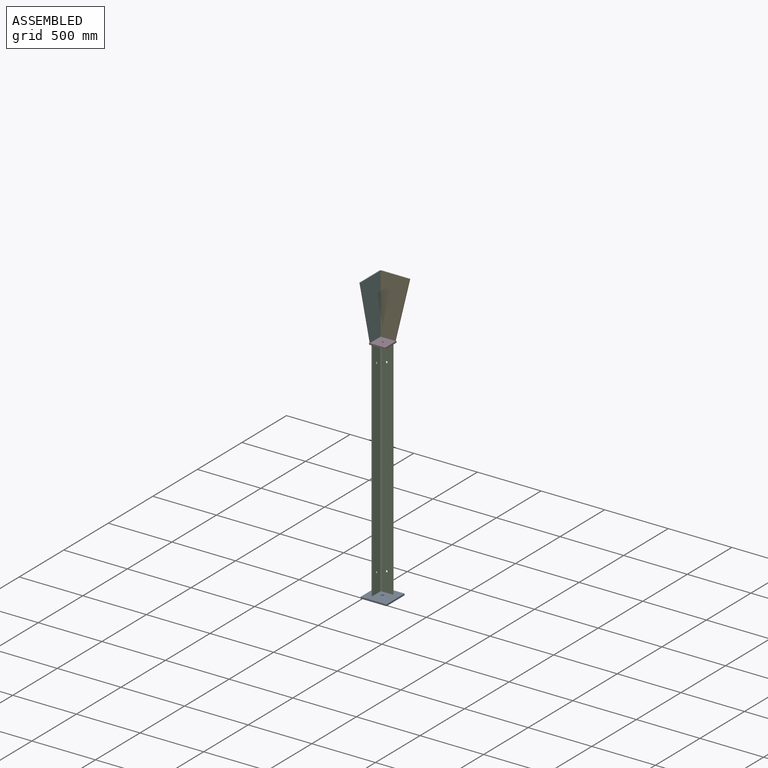
[diagram: assembled view]
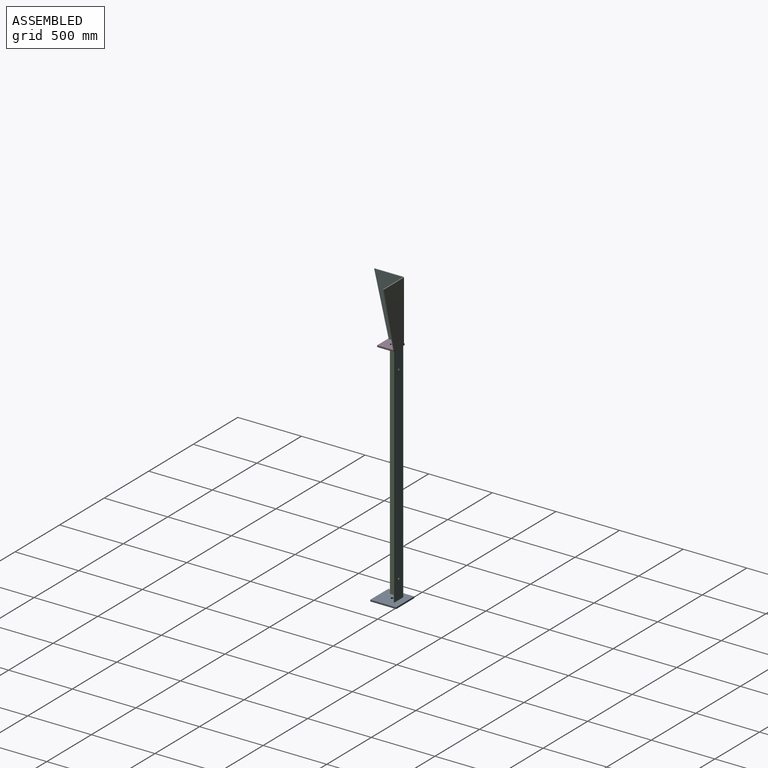
[diagram: assembled view, second angle]
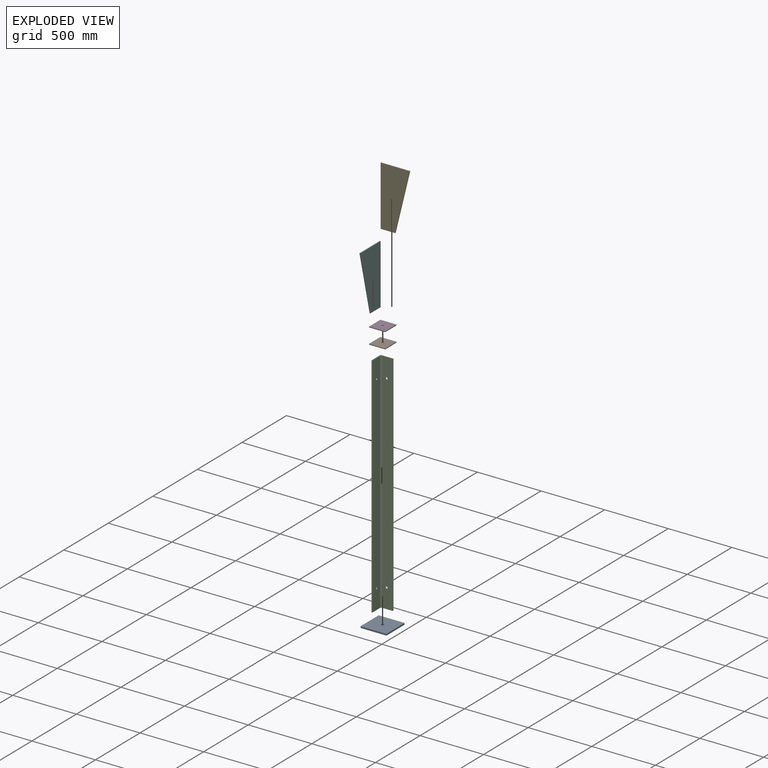
[diagram: exploded view]
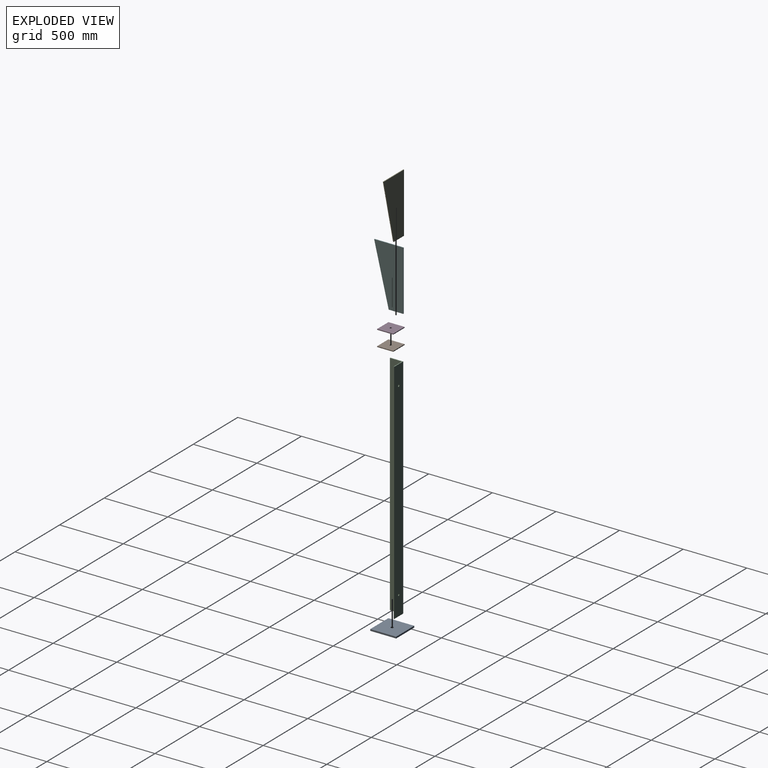
[diagram: exploded view, second angle]
ASSEMBLY  parts=6 mates=5
PART A: 7 faces, bbox 203.2x203.2x12.7 mm
  f0: plane 203.2x12.7mm, normal (0,-1,0), area 2580.6mm2, adj f1,f4,f5,f6
  f1: plane 203.2x12.7mm, normal (1,0,0), area 2580.6mm2, adj f0,f2,f5,f6
  f2: plane 203.2x12.7mm, normal (0,1,0), area 2580.6mm2, adj f1,f4,f5,f6
  f3: cylinder r=11.11mm len=22.23mm, axis (0,0,1), area 886.7mm2, adj f5,f6
  f4: plane 203.2x12.7mm, normal (-1,0,0), area 2580.6mm2, adj f0,f2,f5,f6
  f5: plane 203.2x203.2mm, normal (0,0,-1), area 40902.3mm2, adj f0,f1,f2,f3,f4
  f6: plane 203.2x203.2mm, normal (0,0,1), area 40902.3mm2, adj f0,f1,f2,f3,f4
PART B: 7 faces, bbox 127x127x6.4 mm
  f0: plane 127x6.35mm, normal (0,-1,0), area 806.5mm2, adj f1,f3,f5,f6
  f1: plane 127x6.35mm, normal (1,0,0), area 806.5mm2, adj f0,f2,f5,f6
  f2: plane 127x6.35mm, normal (0,1,0), area 806.5mm2, adj f1,f3,f5,f6
  f3: plane 127x6.35mm, normal (-1,0,0), area 806.5mm2, adj f0,f2,f5,f6
  f4: cylinder r=7.94mm len=15.88mm, axis (0,0,1), area 316.7mm2, adj f5,f6
  f5: plane 127x127mm, normal (0,0,-1), area 15931.1mm2, adj f0,f1,f2,f3,f4
  f6: plane 127x127mm, normal (0,0,1), area 15931.1mm2, adj f0,f1,f2,f3,f4
PART C: 15 faces, bbox 101.6x101.6x1790.7 mm
  f0: plane 101.6x101.6mm, normal (0,0,-1), area 1265.1mm2, adj f2,f3,f4,f5,f6,f7,f8,f9
  f1: plane 101.6x101.6mm, normal (0,0,1), area 1265.1mm2, adj f2,f3,f4,f5,f6,f7,f8,f9
  f2: plane 1790.7x101.6mm, normal (0,-1,0), area 181539.3mm2, adj f0,f1,f3,f10,f13,f14
  f3: plane 1790.7x3.18mm, normal (1,0,0), area 5685.5mm2, adj f0,f1,f2,f4
  f4: cylinder r=3.17mm len=1790.7mm, axis (0,0,1), area 8930.8mm2, adj f0,f1,f3,f5
  f5: plane 1790.7x82.55mm, normal (0,1,0), area 147426.4mm2, adj f0,f1,f4,f6,f13,f14
  f6: cylinder r=9.52mm len=1790.7mm, axis (0,0,1), area 26792.5mm2, adj f0,f1,f5,f7
  f7: plane 1790.7x82.55mm, normal (1,0,0), area 147426.4mm2, adj f0,f1,f6,f8,f11,f12
  f8: cylinder r=3.17mm len=1790.7mm, axis (0,0,1), area 8930.8mm2, adj f0,f1,f7,f9
  f9: plane 1790.7x3.18mm, normal (0,1,0), area 5685.5mm2, adj f0,f1,f8,f10
  f10: plane 1790.7x101.6mm, normal (-1,0,0), area 181539.3mm2, adj f0,f1,f2,f9,f11,f12
  f11: cylinder r=7.94mm len=15.88mm, axis (1,0,0), area 316.7mm2, adj f7,f10
  f12: cylinder r=7.94mm len=15.88mm, axis (1,0,0), area 316.7mm2, adj f7,f10
  f13: cylinder r=7.94mm len=15.88mm, axis (0,-1,0), area 316.7mm2, adj f2,f5
  f14: cylinder r=7.94mm len=15.88mm, axis (0,-1,0), area 316.7mm2, adj f2,f5
PART D: same geometry as B
PART E: 6 faces, bbox 228.6x6.4x469.9 mm
  f0: plane 228.6x6.35mm, normal (0,0,1), area 1451.6mm2, adj f1,f3,f4,f5
  f1: plane 469.9x6.35mm, normal (-1,0,0), area 2983.9mm2, adj f0,f2,f4,f5
  f2: plane 114.3x6.35mm, normal (0,0,-1), area 725.8mm2, adj f1,f3,f4,f5
  f3: plane 469.9x114.3mm, normal (0.97,0,-0.24), area 3070.9mm2, adj f0,f2,f4,f5
  f4: plane 469.9x228.6mm, normal (0,-1,0), area 80564.4mm2, adj f0,f1,f2,f3
  f5: plane 469.9x228.6mm, normal (0,1,0), area 80564.4mm2, adj f0,f1,f2,f3
PART F: same geometry as E
PLACE A t=(6.35,19.05,3.42)mm
PLACE B t=(6.35,6.35,-2.93)mm
PLACE C rot(axis=(0,0,-1),90deg) t=(-298.45,-1708.15,3.42)mm
PLACE D t=(6.35,6.35,3.42)mm
PLACE E t=(6.35,127,3.42)mm
PLACE F rot(axis=(0,0,-1),90deg) t=(-298.45,-1708.15,3.42)mm
MATE fastened D.f4 <-> B.f4  axis (0,0,-1) through (-1003.3,-698.5,1813.17)mm
MATE fastened C.f1 <-> B.f5  axis (0,0,1) through (-1060.45,-641.35,1806.82)mm
MATE fastened F.f2 <-> E.f2  axis (0,0,-1) through (-1060.45,-641.35,1819.52)mm
MATE fastened F.f2 <-> D.f6  axis (0,0,-1) through (-1066.8,-641.35,1819.52)mm
MATE fastened A.f6 <-> C.f0  axis (0,0,1) through (-1111.25,-590.55,16.12)mm
